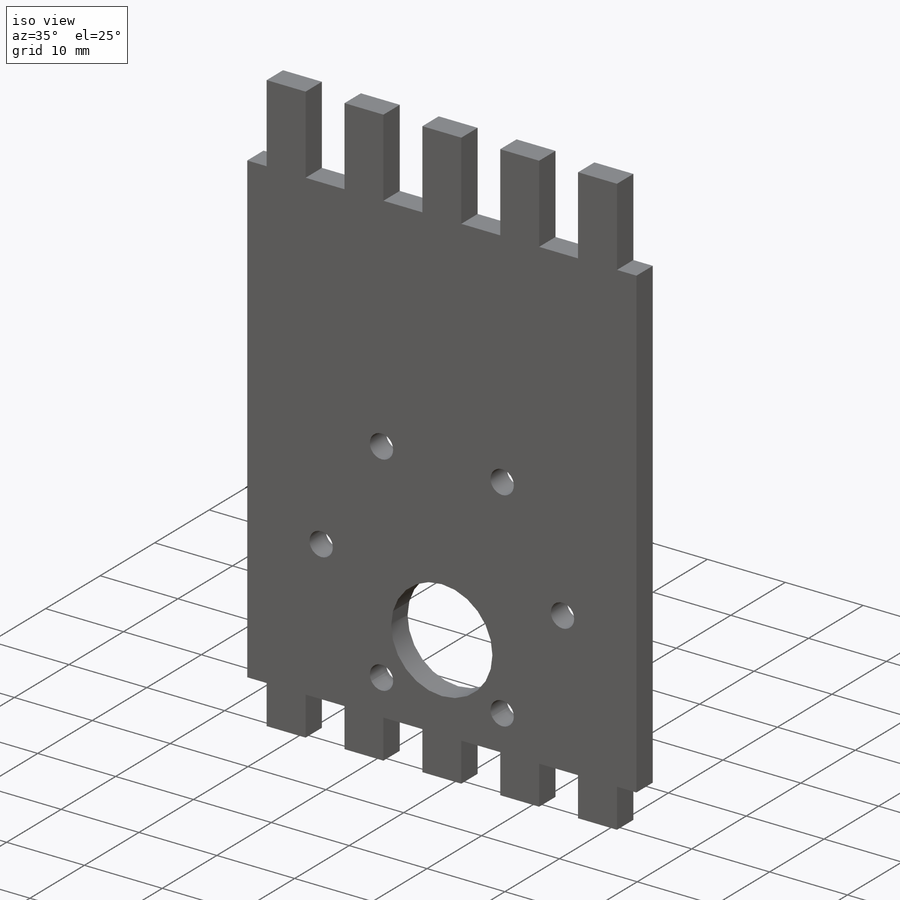
[diagram: iso view]
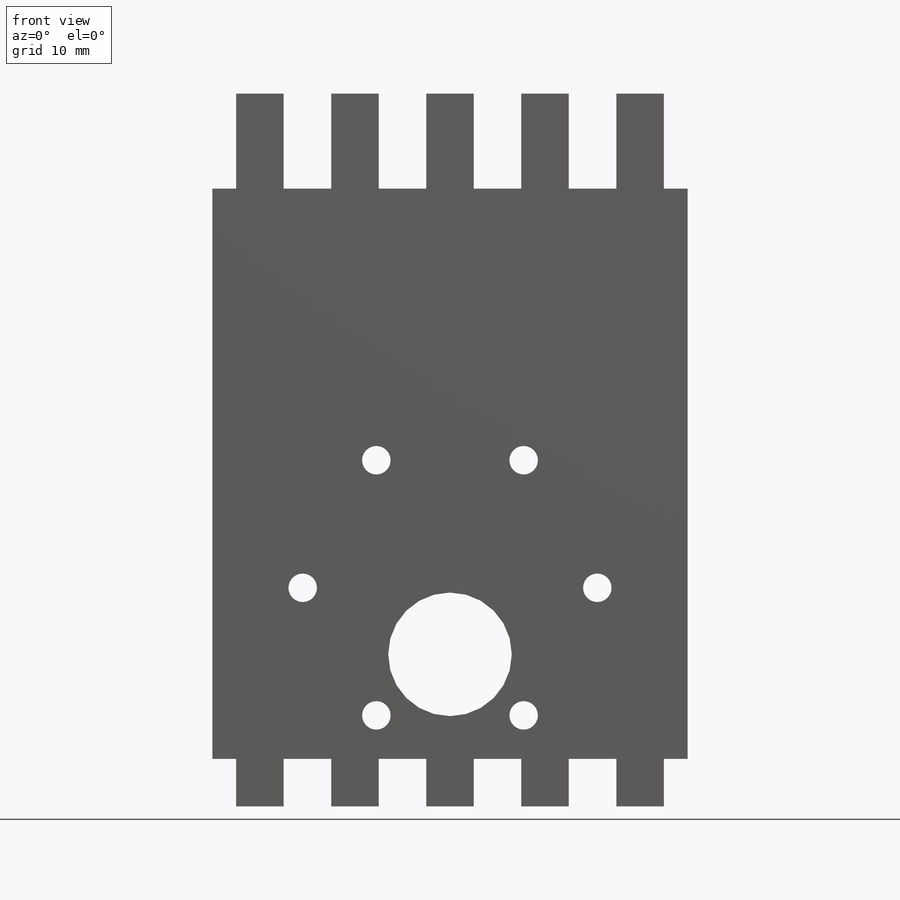
[diagram: front view]
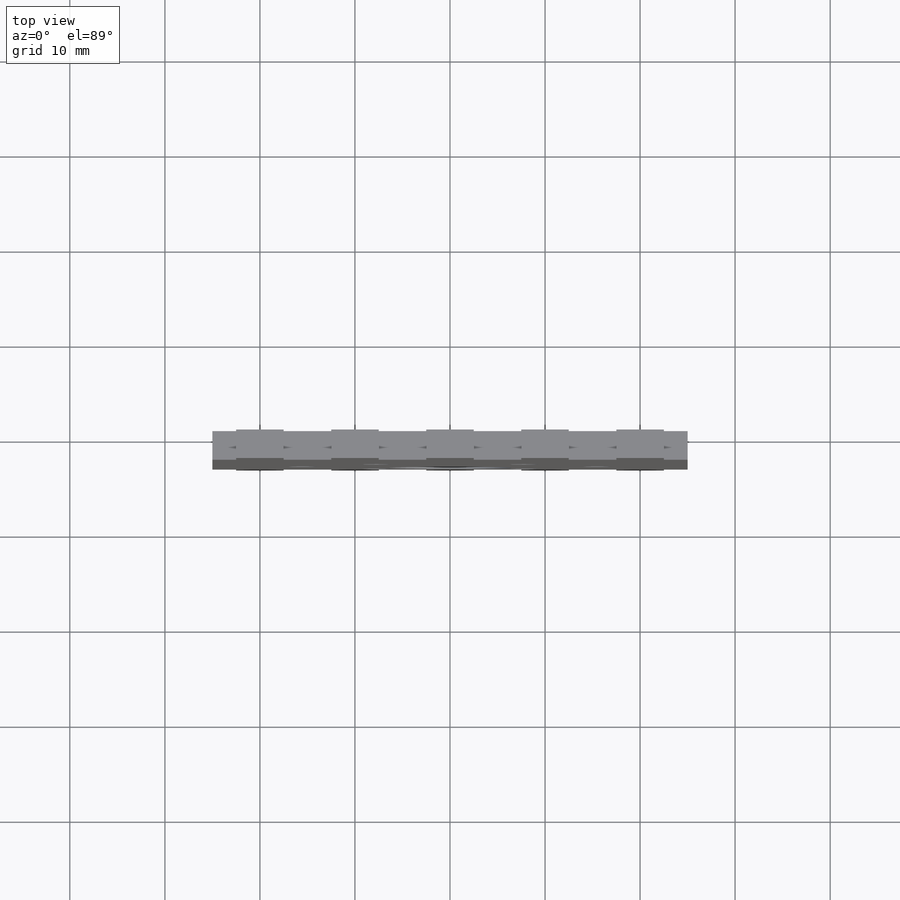
[diagram: top view]
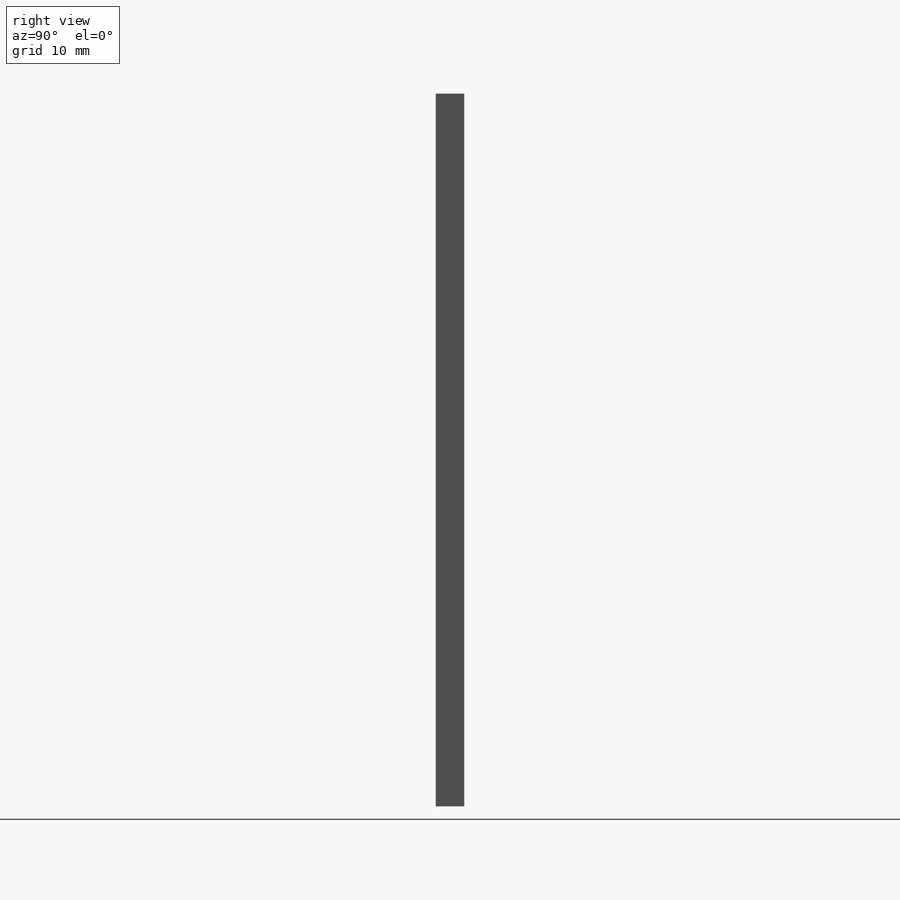
[diagram: right view]
SOLIDWORKS PART (.sldprt)
format: sldprt  version: not decoded by parser v0  size: 382,976 bytes
history: native  units: mm
features: sketch x4, plane x3, extrude x2, cut_extrude x2, material x1, mirror x1, pattern_linear x1 (+10 scaffold rows collapsed)
feature tree (24):
  scaffold x10  (default folders/planes/origin — collapsed)
  material  "Balsa"
  plane  "Plan de face"
  plane  "Plan de dessus"
  plane  "Plan de droite"
  sketch  "Esquisse3"  dims[c1.D1=45.0mm c1.D5=17.05mm c2.D1=35.0mm c2.D2=50.0mm c2.D3=50.0mm c3.D2=25.0mm c3.D3=50.0mm c3.D4=30.0mm c3.D5=60.0mm c3.D6=30.0mm c3.D1=22.0mm c4.D2=~49.63154mm c5.D2=90.0deg c6.D2=25.0mm c6.D3=50.0mm c6.D4=60.0mm]
  extrude  "Boss.-Extru.12"  Depth=3mm
  sketch  "Esquisse4"  dims[c1.D1=31.0mm c1.D4=3.0mm c1.D5=3.0mm c1.D6=3.0mm c1.D2=5.0mm c1.D3=15.5mm c2.D3=30.0deg c2.D7=~15.464329mm c3.D7=60.0deg c3.D8=15.5mm c4.D8=60.0deg c4.D9=18.0mm c4.D10=~30.790491mm c5.D10=90.0deg c6.D10=25.0mm]
  cut_extrude  "Enlèv. mat.-Extru.1"  Depth=5mm
  sketch  "Esquisse6"  dims[c1.D2=13.0mm c1.D1=7.0mm c1.D3=11.0mm c1.D4=~27.313001mm c2.D4=90.0deg c3.D4=25.0mm]
  cut_extrude  "Enlèv. mat.-Extru.3"  Depth=10mm
  mirror  "Symétrie3"
  sketch  "Esquisse7"  dims[D1=5.0mm D2=10.0mm D3=2.5mm D4=2.5mm D5=5.0mm D6=5.0mm]
  extrude  "Boss.-Extru.13"  Depth=3mm
  pattern_linear  "Répétition linéaire1"  Count1=5 Count2=1 Spacing1=10mm Spacing2=10mm
decode coverage: 9 of 10 modeling features carry decoded parameters
note: ~ marks probable driven/reference dimensions
note: suppression state not decoded; provenance and decode notes live in map.json
